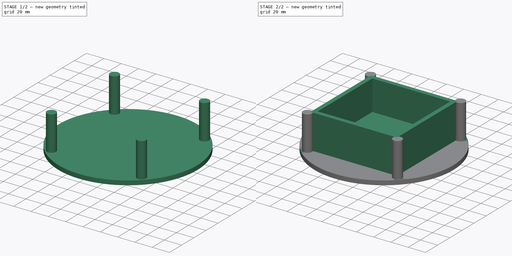
[diagram: build sequence overview — one tinted view per stage of 2, left to right]
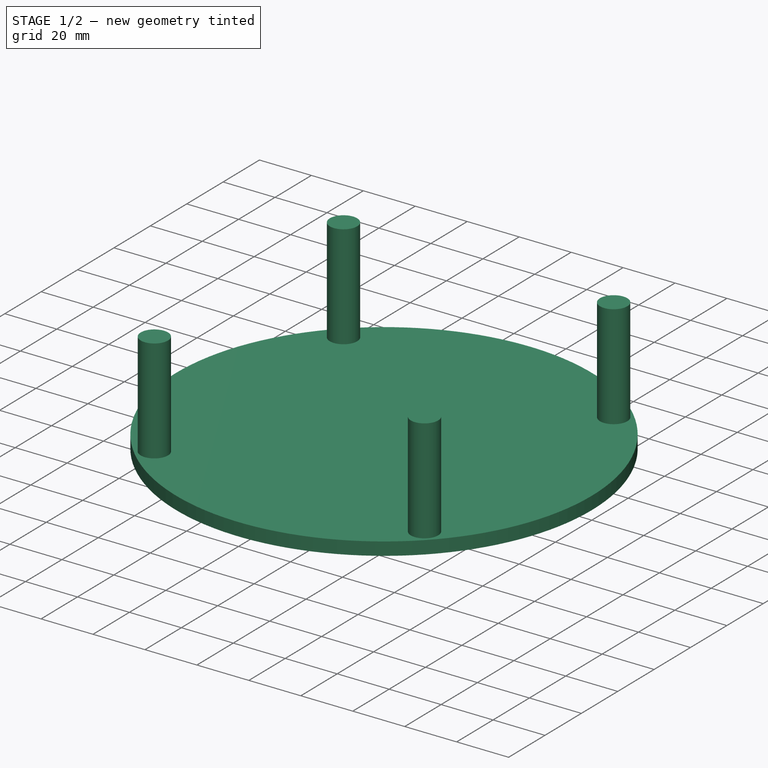
[diagram: stage 1 of 2 — iso view after this stage's code; geometry added in this stage tinted green]
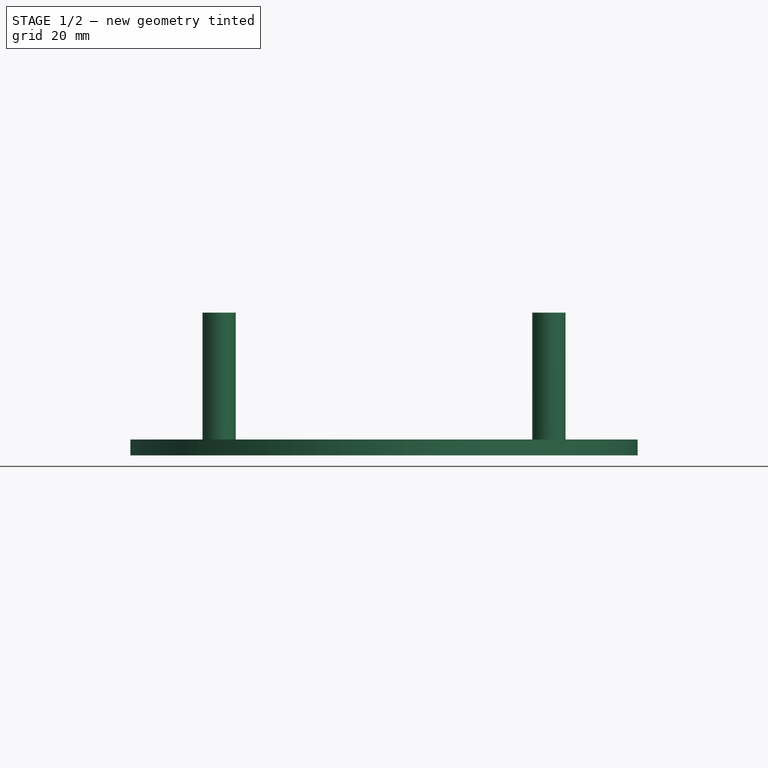
[diagram: stage 1 of 2 — front view after this stage's code; geometry added in this stage tinted green]
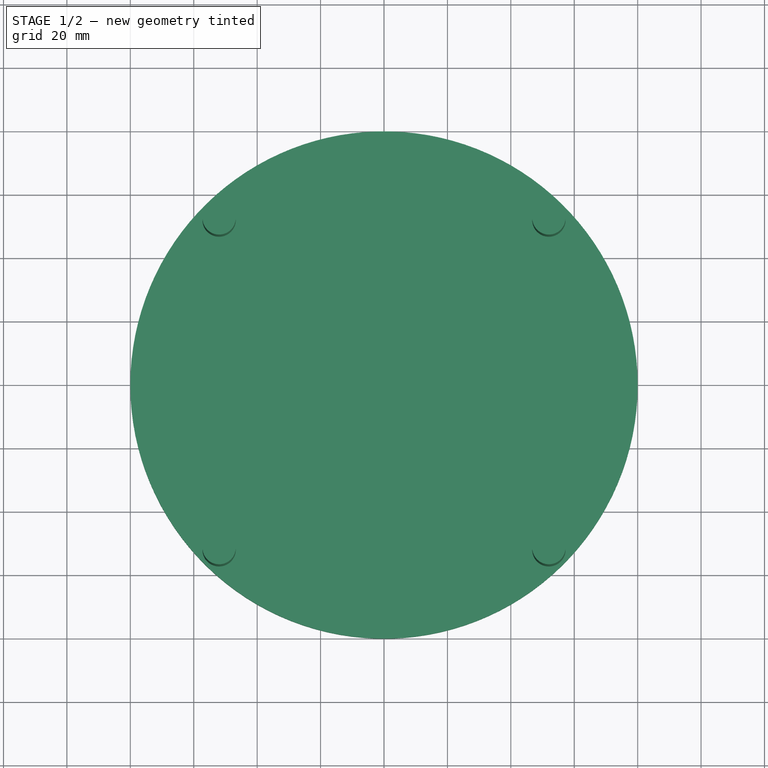
[diagram: stage 1 of 2 — top view after this stage's code; geometry added in this stage tinted green]
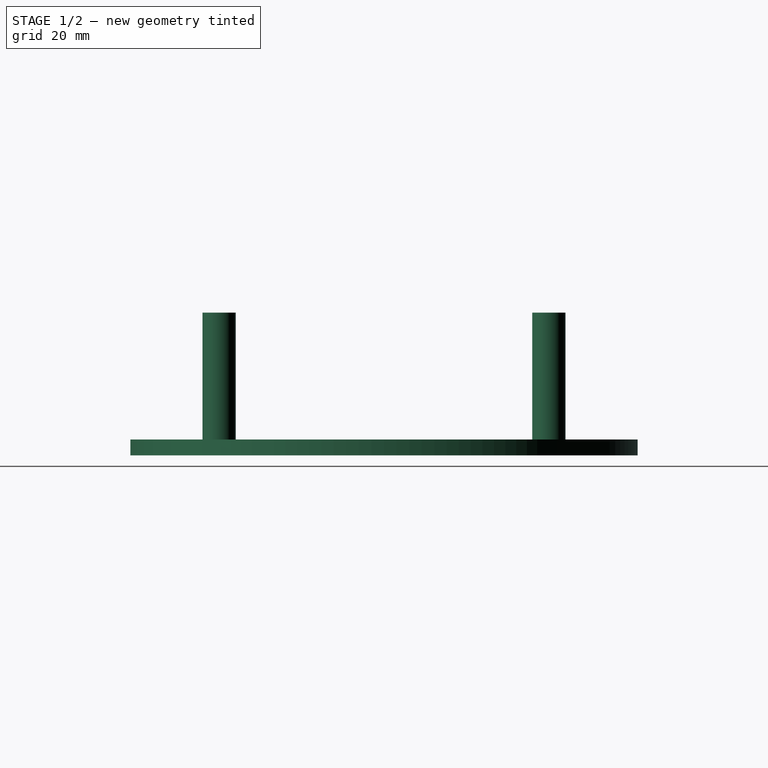
[diagram: stage 1 of 2 — right view after this stage's code; geometry added in this stage tinted green]
FCSTD DOCUMENT  (FreeCAD 0.14R3700 (Git))
Label: Speed
License: CC-BY 3.0
LicenseURL: http://creativecommons.org/licenses/by/3.0/
objects: Sketcher::SketchObject×5, PartDesign::Pad×3, PartDesign::Pocket×1
note: 13 computed .brp shape members not serialized (recipe doc carries the construction recipe); baked Part::Feature solids carry a one-line shape summary decoded from their .brp

FEATURE [Sketcher::SketchObject] Sketch
  sketch-geometry (1):
    g0: Circle CenterX=0 CenterY=0 CenterZ=0 NormalX=0 NormalY=0 NormalZ=1 Radius=80
  constraints (2):
    c: Coincident(g0,g-1)
    c: Radius(g0) = 80
FEATURE [PartDesign::Pad] Pad
  Length = 5
  Length2 = 20
  Sketch = -> Sketch
  Type = 0
FEATURE [PartDesign::Pad] Pad002
  Length = 40
  Length2 = 20
  Sketch = -> Sketch002
  Type = 0
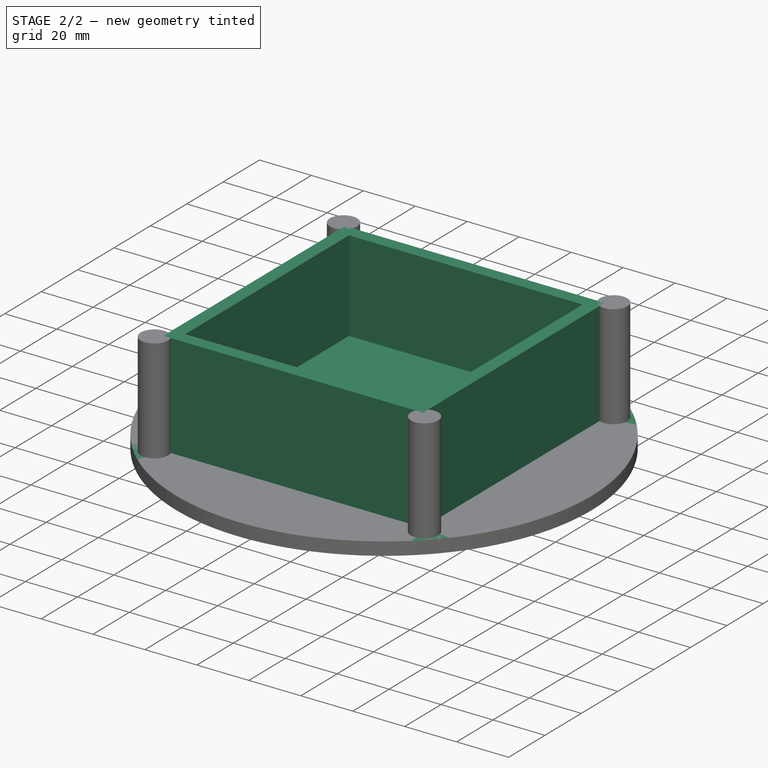
[diagram: stage 2 of 2 — iso view after this stage's code; geometry added in this stage tinted green]
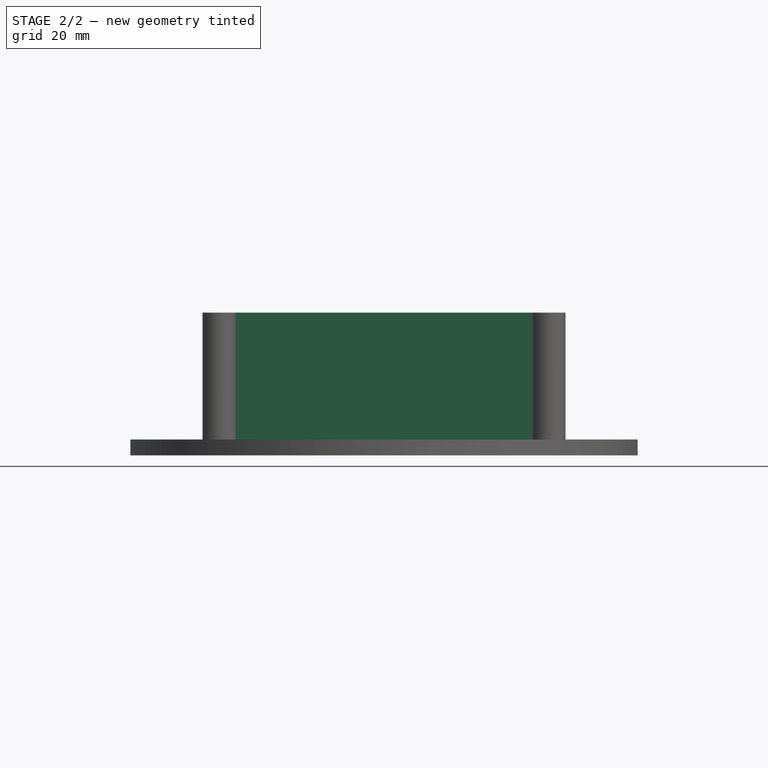
[diagram: stage 2 of 2 — front view after this stage's code; geometry added in this stage tinted green]
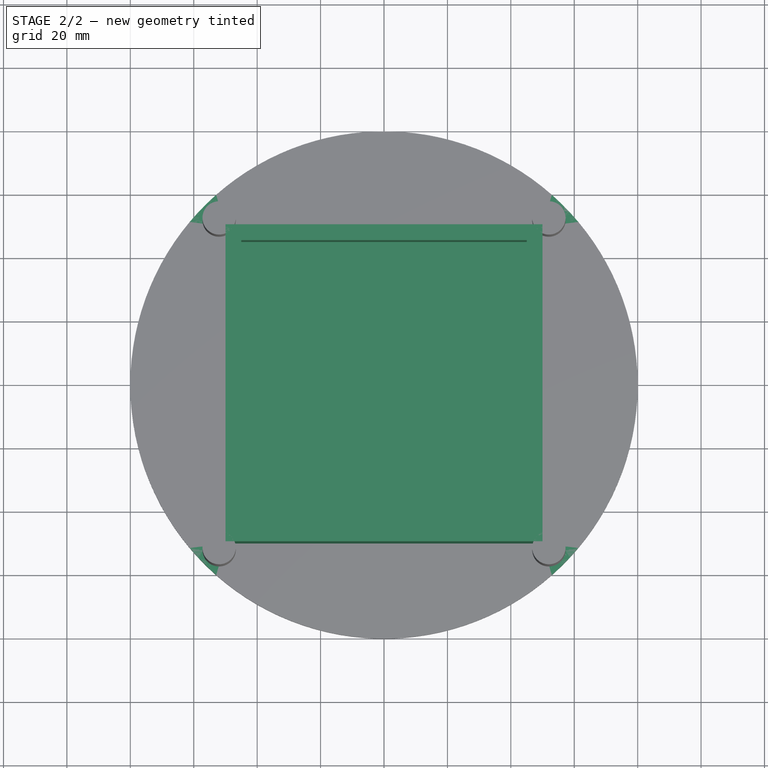
[diagram: stage 2 of 2 — top view after this stage's code; geometry added in this stage tinted green]
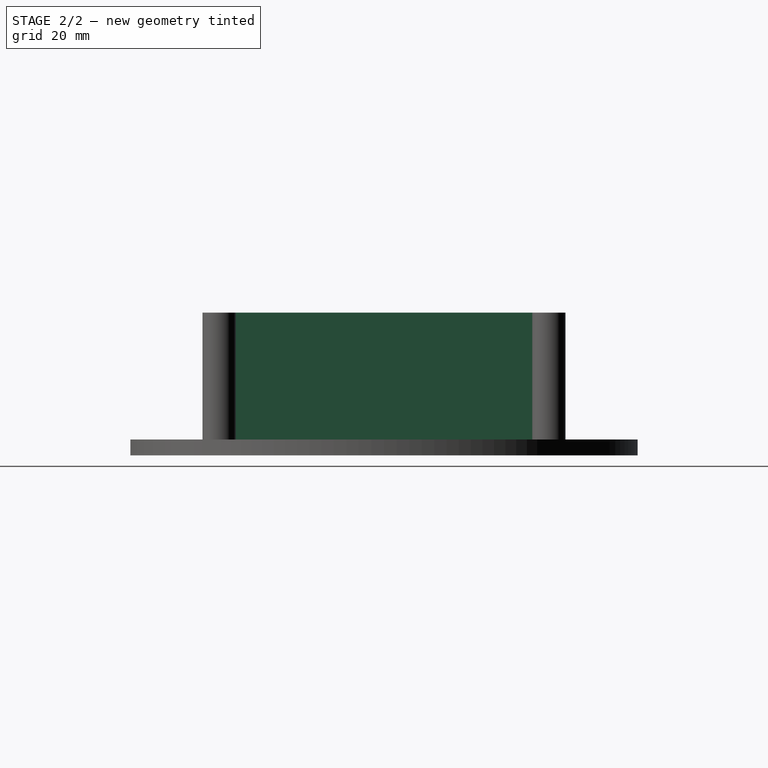
[diagram: stage 2 of 2 — right view after this stage's code; geometry added in this stage tinted green]
FEATURE [Sketcher::SketchObject] Sketch001
  Placement = pos=(0,0,5) rot=(0,0,1;0rad)
  Support = -> Pad [Face3]
  sketch-geometry (4):
    g0: LineSegment StartX=-50 StartY=50 StartZ=0 EndX=50 EndY=50 EndZ=0
    g1: LineSegment StartX=50 StartY=50 StartZ=0 EndX=50 EndY=-50 EndZ=0
    g2: LineSegment StartX=50 StartY=-50 StartZ=0 EndX=-50 EndY=-50 EndZ=0
    g3: LineSegment StartX=-50 StartY=-50 StartZ=0 EndX=-50 EndY=50 EndZ=0
  constraints (12):
    c: Coincident(g0,g1)
    c: Coincident(g1,g2)
    c: Coincident(g2,g3)
    c: Coincident(g3,g0)
    c: Horizontal(g0)
    c: Horizontal(g2)
    c: Vertical(g1)
    c: Vertical(g3)
    c: DistanceX(g0,g0) = 100
    c: DistanceY(g0,g1) = -100
    c: DistanceY(g-1,g1) = -50
    c: DistanceX(g-1,g0) = -50
FEATURE [Sketcher::SketchObject] Sketch002
  Placement = pos=(0,0,5) rot=(0,0,1;0rad)
  Support = -> Pad [Face3]
  sketch-geometry (4):
    g0: Circle CenterX=-52 CenterY=52 CenterZ=0 NormalX=0 NormalY=0 NormalZ=1 Radius=5.25
    g1: Circle CenterX=-52 CenterY=-52 CenterZ=0 NormalX=0 NormalY=0 NormalZ=1 Radius=5.25
    g2: Circle CenterX=52 CenterY=52 CenterZ=0 NormalX=0 NormalY=0 NormalZ=1 Radius=5.25
    g3: Circle CenterX=52 CenterY=-52 CenterZ=0 NormalX=0 NormalY=0 NormalZ=1 Radius=5.25
  constraints (12):
    c: Radius(g0) = 5.25
    c: DistanceX(g-1,g0) = -52
    c: DistanceY(g-1,g0) = 52
    c: Radius(g1) = 5.25
    c: DistanceY(g-1,g1) = -52
    c: DistanceX(g-1,g1) = -52
    c: Radius(g2) = 5.25
    c: DistanceX(g-1,g2) = 52
    c: DistanceY(g-1,g2) = 52
    c: Radius(g3) = 5.25
    c: DistanceY(g-1,g3) = -52
    c: DistanceX(g-1,g3) = 52
FEATURE [PartDesign::Pad] Pad001
  Length = 40
  Length2 = 20
  Sketch = -> Sketch001
  Type = 0
FEATURE [Sketcher::SketchObject] Sketch003
  ExternalGeometry = -> [Pad001]
  Placement = pos=(0,0,45) rot=(0,0,1;0rad)
  Support = -> Pad001 [Face8]
  sketch-geometry (4):
    g0: LineSegment StartX=-45 StartY=45 StartZ=0 EndX=45 EndY=45 EndZ=0
    g1: LineSegment StartX=45 StartY=45 StartZ=0 EndX=45 EndY=-45 EndZ=0
    g2: LineSegment StartX=45 StartY=-45 StartZ=0 EndX=-45 EndY=-45 EndZ=0
    g3: LineSegment StartX=-45 StartY=-45 StartZ=0 EndX=-45 EndY=45 EndZ=0
  constraints (12):
    c: Coincident(g0,g1)
    c: Coincident(g1,g2)
    c: Coincident(g2,g3)
    c: Coincident(g3,g0)
    c: Horizontal(g0)
    c: Horizontal(g2)
    c: Vertical(g1)
    c: Vertical(g3)
    c: DistanceY(g0,g-4) = 5
    c: DistanceX(g0,g-4) = -5
    c: DistanceX(g0,g-3) = 5
    c: DistanceY(g1,g-5) = -5
FEATURE [PartDesign::Pocket] Pocket
  Length = 35
  Sketch = -> Sketch003
  Type = 0
FEATURE [Sketcher::SketchObject] Sketch004
  Placement = pos=(0,0,5) rot=(0,0,1;0rad)
  Support = -> Pad002 [Face3]
  sketch-geometry (4):
    g0: Circle CenterX=-52 CenterY=52 CenterZ=0 NormalX=0 NormalY=0 NormalZ=1 Radius=1.75
    g1: Circle CenterX=-52 CenterY=-52 CenterZ=0 NormalX=0 NormalY=0 NormalZ=1 Radius=1.75
    g2: Circle CenterX=52 CenterY=52 CenterZ=0 NormalX=0 NormalY=0 NormalZ=1 Radius=1.75
    g3: Circle CenterX=52 CenterY=-52 CenterZ=0 NormalX=0 NormalY=0 NormalZ=1 Radius=1.75
  constraints (12):
    c: Radius(g0) = 1.75
    c: DistanceX(g-1,g0) = -52
    c: DistanceY(g-1,g0) = 52
    c: DistanceY(g-1,g1) = -52
    c: DistanceX(g-1,g1) = -52
    c: Radius(g1) = 1.75
    c: DistanceY(g-1,g2) = 52
    c: DistanceX(g-1,g2) = 52
    c: Radius(g2) = 1.75
    c: DistanceX(g-1,g3) = 52
    c: DistanceY(g-1,g3) = -52
    c: Radius(g3) = 1.75
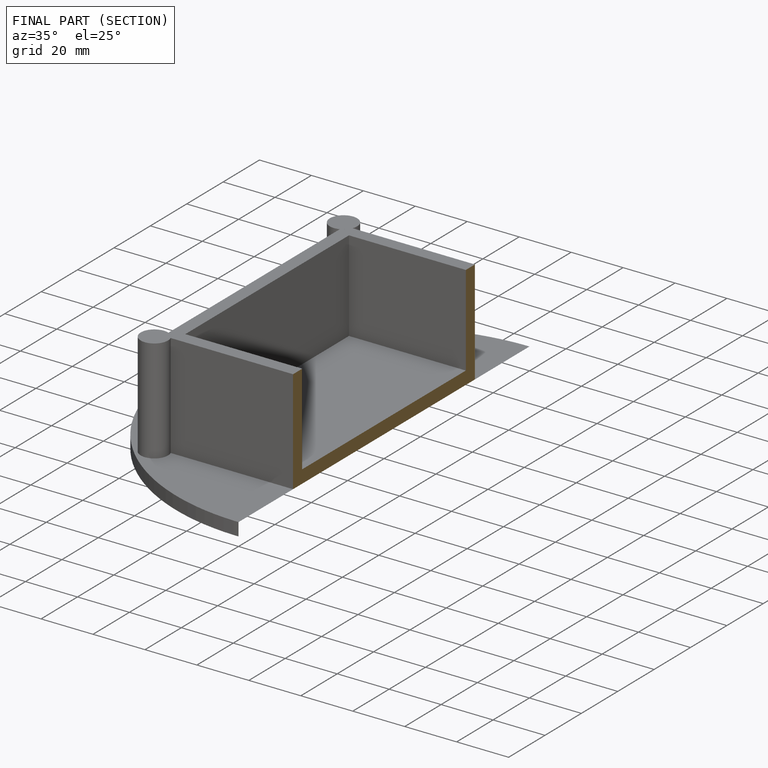
[diagram: finished part — half-section view (interior)]
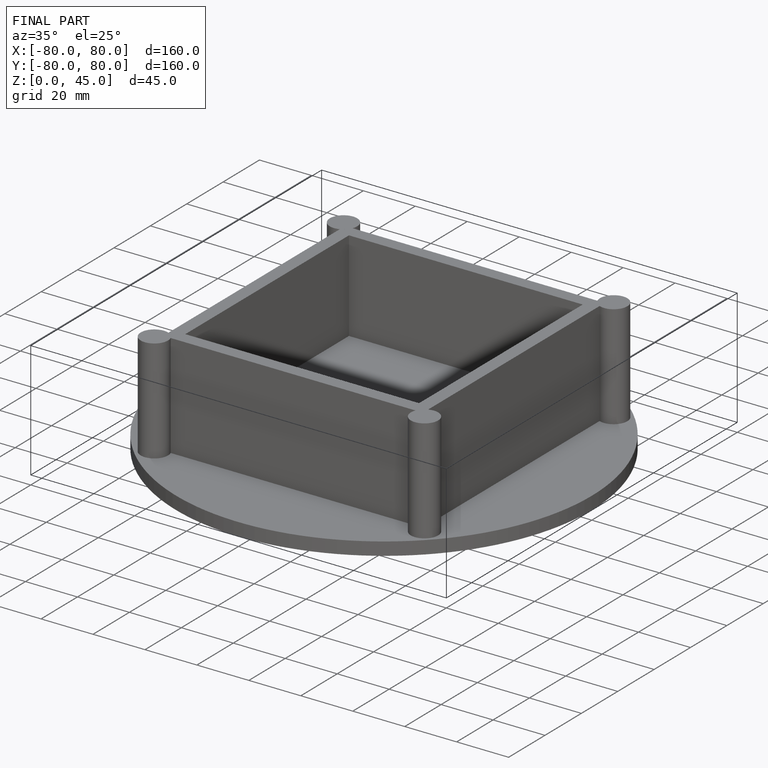
[diagram: finished part — iso view with bounding-box wireframe]
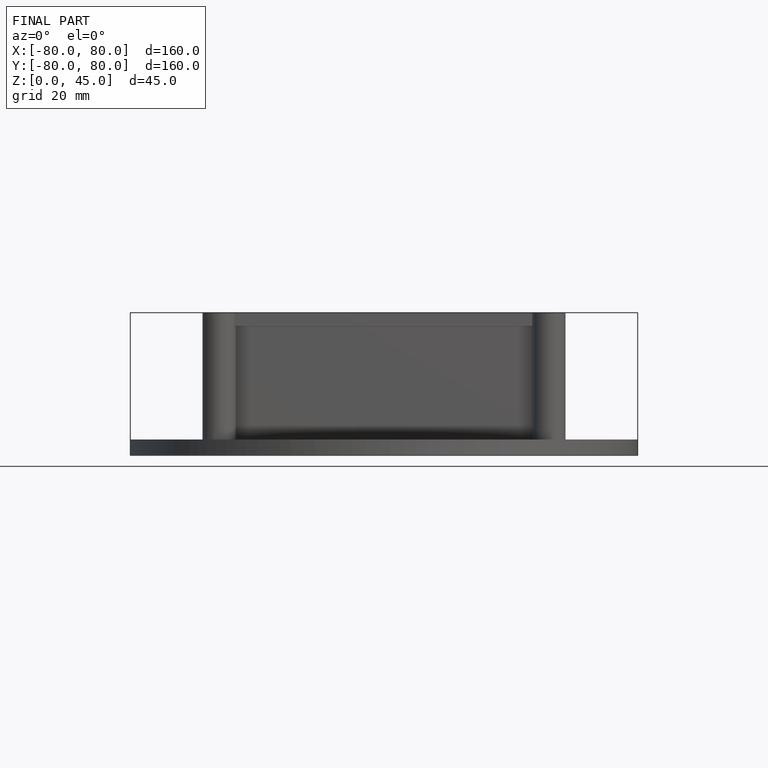
[diagram: finished part — front view with bounding-box wireframe]
